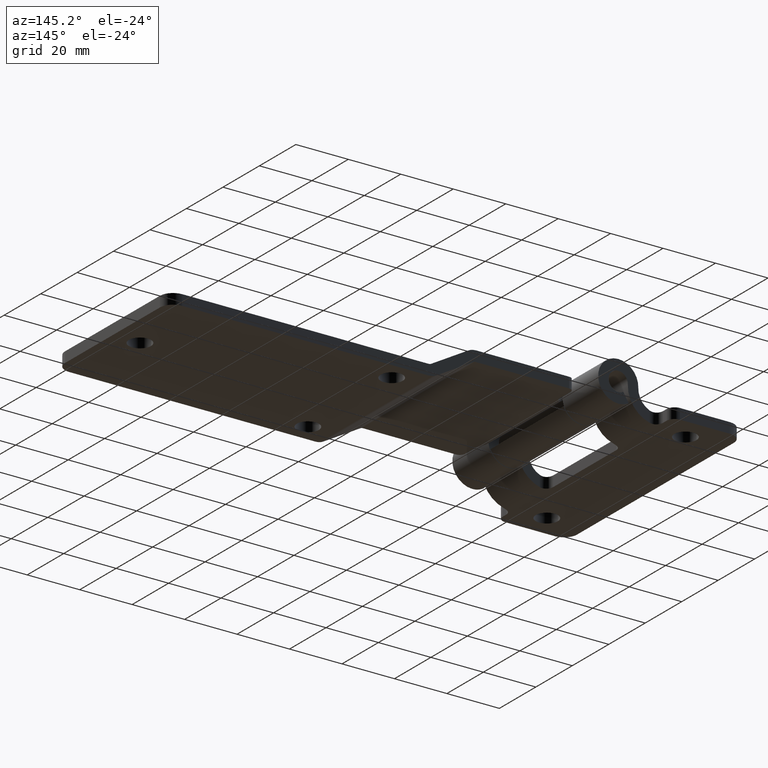
[diagram: clean part render]
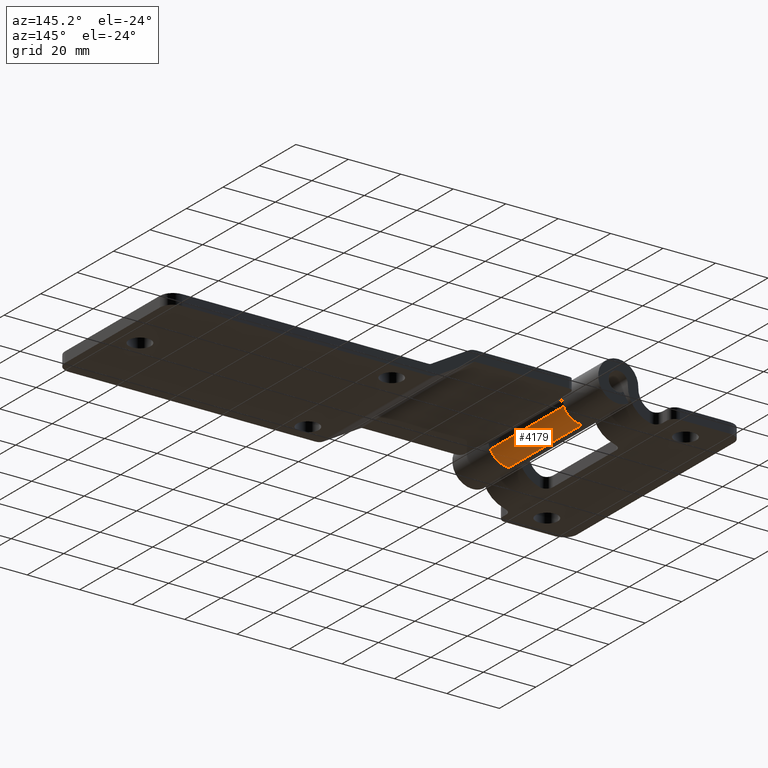
[diagram: same view with one face highlighted and labeled with its STEP entity id]
A machine part, auxiliary view. The second image highlights one B-rep face of the part: STEP entity #4179.
In plain terms, the highlighted cylindrical surface (edge-blend (fillet) strip) has radius 7.65 mm, axis along (-0, -1, -0).
Its self-contained STEP definition (entity closure, byte-faithful):
#365 = VECTOR ( 'NONE', #3904, 1000.000000000000000 ) ;
#409 = ORIENTED_EDGE ( 'NONE', *, *, #3133, .F. ) ;
#579 = EDGE_LOOP ( 'NONE', ( #409, #1457, #3873, #4551 ) ) ;
#923 = VERTEX_POINT ( 'NONE', #4151 ) ;
#1051 = DIRECTION ( 'NONE',  ( -0.0000000000000000000, 1.000000000000000000, -0.0000000000000000000 ) ) ;
#1136 = VERTEX_POINT ( 'NONE', #1399 ) ;
#1325 = DIRECTION ( 'NONE',  ( 0.0000000000000000000, 0.0000000000000000000, -1.000000000000000000 ) ) ;
#1399 = CARTESIAN_POINT ( 'NONE',  ( -3.500000000000010200, -20.00000000000000000, -0.7858548248418982800 ) ) ;
#1413 = AXIS2_PLACEMENT_3D ( 'NONE', #3806, #3785, #3820 ) ;
#1457 = ORIENTED_EDGE ( 'NONE', *, *, #3957, .F. ) ;
#1501 = AXIS2_PLACEMENT_3D ( 'NONE', #4313, #4338, #4189 ) ;
#1580 = LINE ( 'NONE', #2888, #365 ) ;
#1693 = CYLINDRICAL_SURFACE ( 'NONE', #1501, 7.650000000000000400 ) ;
#1708 = CIRCLE ( 'NONE', #1413, 7.650000000000000400 ) ;
#2063 = AXIS2_PLACEMENT_3D ( 'NONE', #2211, #1051, #1325 ) ;
#2079 = CARTESIAN_POINT ( 'NONE',  ( -3.500000000000010200, 20.00000000000000000, -0.7858548248418982800 ) ) ;
#2211 = CARTESIAN_POINT ( 'NONE',  ( -10.50000000000000900, 20.00000000000000000, 2.299999999999998000 ) ) ;
#2363 = DIRECTION ( 'NONE',  ( -0.0000000000000000000, -1.000000000000000000, -0.0000000000000000000 ) ) ;
#2383 = CARTESIAN_POINT ( 'NONE',  ( -10.50000000000000900, 20.00000000000000000, -5.350000000000002300 ) ) ;
#2545 = FACE_OUTER_BOUND ( 'NONE', #579, .T. ) ;
#2681 = VERTEX_POINT ( 'NONE', #3293 ) ;
#2888 = CARTESIAN_POINT ( 'NONE',  ( -3.500000000000010200, 20.00000000000000000, -0.7858548248418982800 ) ) ;
#3133 = EDGE_CURVE ( 'NONE', #2681, #923, #3177, .T. ) ;
#3177 = LINE ( 'NONE', #2383, #4245 ) ;
#3205 = VERTEX_POINT ( 'NONE', #2079 ) ;
#3293 = CARTESIAN_POINT ( 'NONE',  ( -10.50000000000000900, 20.00000000000000000, -5.350000000000002300 ) ) ;
#3785 = DIRECTION ( 'NONE',  ( -0.0000000000000000000, 1.000000000000000000, -0.0000000000000000000 ) ) ;
#3806 = CARTESIAN_POINT ( 'NONE',  ( -10.50000000000000900, -20.00000000000000000, 2.299999999999998000 ) ) ;
#3820 = DIRECTION ( 'NONE',  ( 0.0000000000000000000, 0.0000000000000000000, -1.000000000000000000 ) ) ;
#3873 = ORIENTED_EDGE ( 'NONE', *, *, #4233, .T. ) ;
#3904 = DIRECTION ( 'NONE',  ( -0.0000000000000000000, -1.000000000000000000, -0.0000000000000000000 ) ) ;
#3957 = EDGE_CURVE ( 'NONE', #3205, #2681, #4192, .T. ) ;
#4151 = CARTESIAN_POINT ( 'NONE',  ( -10.50000000000000900, -20.00000000000000000, -5.350000000000002300 ) ) ;
#4179 = ADVANCED_FACE ( 'NONE', ( #2545 ), #1693, .T. ) ;
#4189 = DIRECTION ( 'NONE',  ( 0.0000000000000000000, 0.0000000000000000000, -1.000000000000000000 ) ) ;
#4192 = CIRCLE ( 'NONE', #2063, 7.650000000000000400 ) ;
#4233 = EDGE_CURVE ( 'NONE', #3205, #1136, #1580, .T. ) ;
#4234 = EDGE_CURVE ( 'NONE', #1136, #923, #1708, .T. ) ;
#4245 = VECTOR ( 'NONE', #2363, 1000.000000000000000 ) ;
#4313 = CARTESIAN_POINT ( 'NONE',  ( -10.50000000000000900, 20.00000000000000000, 2.299999999999998000 ) ) ;
#4338 = DIRECTION ( 'NONE',  ( -0.0000000000000000000, -1.000000000000000000, -0.0000000000000000000 ) ) ;
#4551 = ORIENTED_EDGE ( 'NONE', *, *, #4234, .T. ) ;